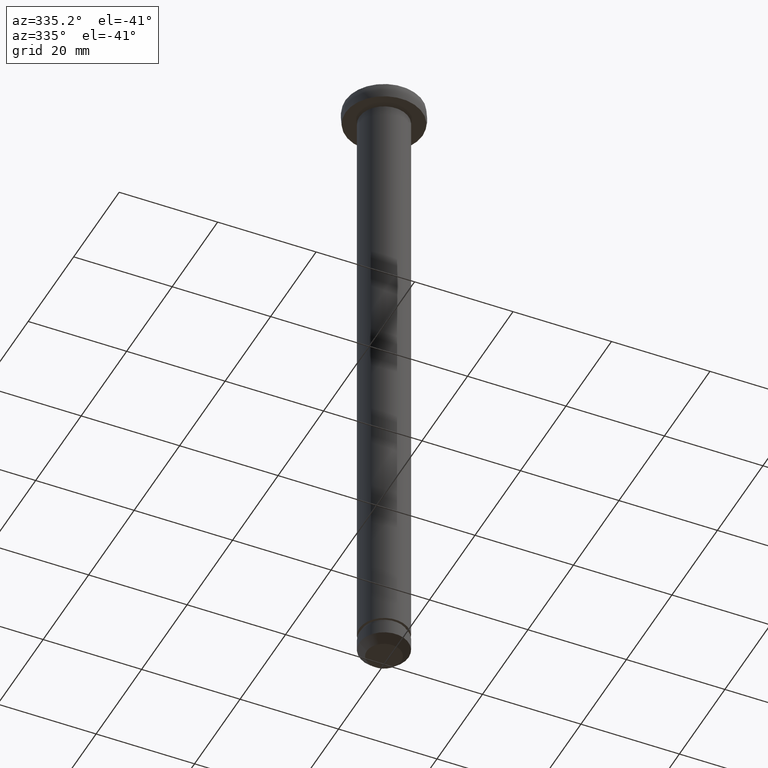
[diagram: clean part render]
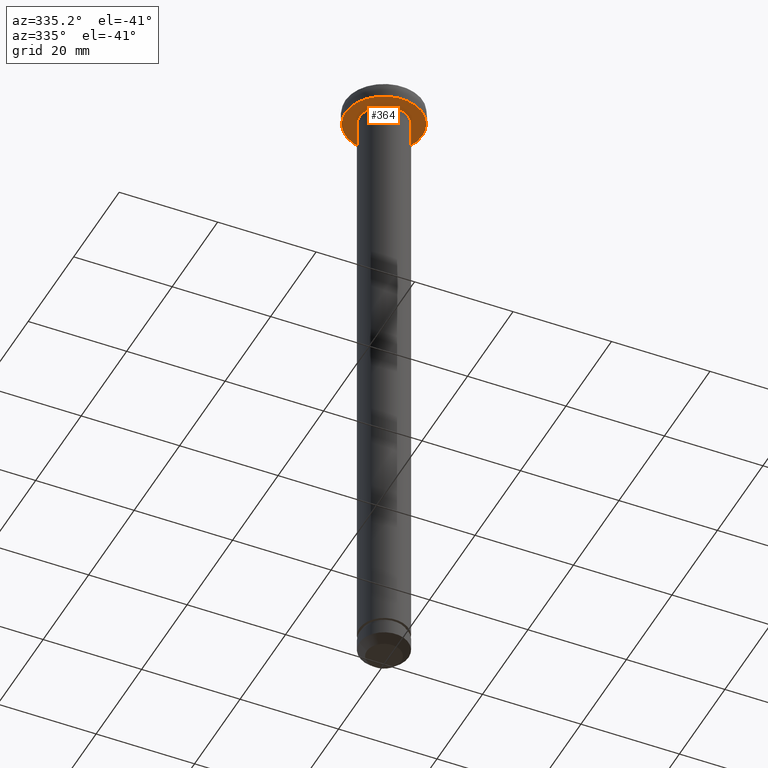
[diagram: same view with one face highlighted and labeled with its STEP entity id]
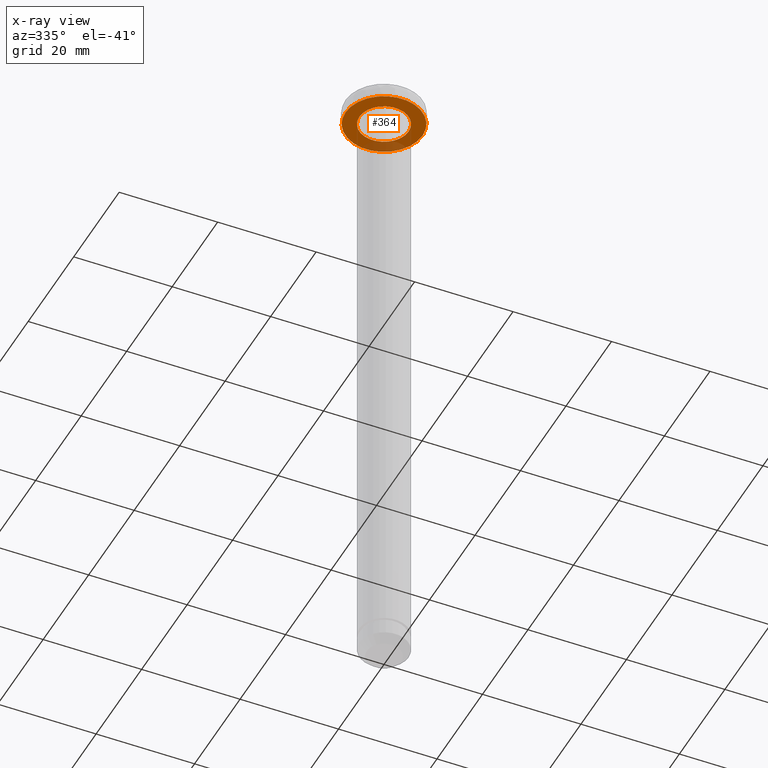
[diagram: x-ray of the same camera — body ghosted, the highlighted face saturated]
A machine part, auxiliary view. The second image highlights one B-rep face of the part: STEP entity #364.
The next image is the same camera in x-ray: the body ghosted, the highlighted face saturated — about 15% of this face is hidden behind the body in this view.
In plain terms, the highlighted planar face has unit normal (0, 0, -1).
Its self-contained STEP definition (entity closure, byte-faithful):
#8 = ORIENTED_EDGE ( 'NONE', *, *, #352, .T. ) ;
#10 = CARTESIAN_POINT ( 'NONE',  ( 0.0000000000000000000, 0.0000000000000000000, -3.000000018043495100 ) ) ;
#14 = VERTEX_POINT ( 'NONE', #204 ) ;
#83 = EDGE_CURVE ( 'NONE', #14, #90, #320, .T. ) ;
#90 = VERTEX_POINT ( 'NONE', #321 ) ;
#92 = CARTESIAN_POINT ( 'NONE',  ( -5.000000000000000000, 0.0000000000000000000, -3.000000018043495100 ) ) ;
#103 = FACE_OUTER_BOUND ( 'NONE', #403, .T. ) ;
#119 = CARTESIAN_POINT ( 'NONE',  ( 0.0000000000000000000, 0.0000000000000000000, -3.000000018043520000 ) ) ;
#121 = DIRECTION ( 'NONE',  ( 0.0000000000000000000, 0.0000000000000000000, -1.000000000000000000 ) ) ;
#127 = CARTESIAN_POINT ( 'NONE',  ( 5.000000000000000000, 0.0000000000000000000, -3.000000018043507600 ) ) ;
#145 = AXIS2_PLACEMENT_3D ( 'NONE', #10, #200, #309 ) ;
#149 = FACE_BOUND ( 'NONE', #436, .T. ) ;
#162 = AXIS2_PLACEMENT_3D ( 'NONE', #429, #190, #231 ) ;
#190 = DIRECTION ( 'NONE',  ( 0.0000000000000000000, 0.0000000000000000000, -1.000000000000000000 ) ) ;
#196 = AXIS2_PLACEMENT_3D ( 'NONE', #119, #227, #350 ) ;
#200 = DIRECTION ( 'NONE',  ( 0.0000000000000000000, 0.0000000000000000000, -1.000000000000000000 ) ) ;
#201 = VERTEX_POINT ( 'NONE', #92 ) ;
#204 = CARTESIAN_POINT ( 'NONE',  ( -7.828427118366898100, 0.0000000000000000000, -3.000000018043520000 ) ) ;
#227 = DIRECTION ( 'NONE',  ( 0.0000000000000000000, 0.0000000000000000000, -1.000000000000000000 ) ) ;
#231 = DIRECTION ( 'NONE',  ( -1.000000000000000000, 0.0000000000000000000, 0.0000000000000000000 ) ) ;
#236 = CARTESIAN_POINT ( 'NONE',  ( 5.000000000000000000, 6.123233995736766300E-016, -3.000000018043495100 ) ) ;
#289 = DIRECTION ( 'NONE',  ( 0.0000000000000000000, 0.0000000000000000000, -1.000000000000000000 ) ) ;
#301 = AXIS2_PLACEMENT_3D ( 'NONE', #127, #121, #338 ) ;
#303 = DIRECTION ( 'NONE',  ( -1.000000000000000000, 0.0000000000000000000, 0.0000000000000000000 ) ) ;
#309 = DIRECTION ( 'NONE',  ( -1.000000000000000000, 0.0000000000000000000, 0.0000000000000000000 ) ) ;
#320 = CIRCLE ( 'NONE', #162, 7.828427118366898100 ) ;
#321 = CARTESIAN_POINT ( 'NONE',  ( 7.828427118366898100, 9.587058212866361900E-016, -3.000000018043520000 ) ) ;
#326 = AXIS2_PLACEMENT_3D ( 'NONE', #434, #289, #303 ) ;
#331 = EDGE_CURVE ( 'NONE', #201, #353, #425, .T. ) ;
#338 = DIRECTION ( 'NONE',  ( -1.000000000000000000, 0.0000000000000000000, -0.0000000000000000000 ) ) ;
#350 = DIRECTION ( 'NONE',  ( -1.000000000000000000, 0.0000000000000000000, 0.0000000000000000000 ) ) ;
#352 = EDGE_CURVE ( 'NONE', #90, #14, #448, .T. ) ;
#353 = VERTEX_POINT ( 'NONE', #236 ) ;
#364 = ADVANCED_FACE ( 'NONE', ( #103, #149 ), #385, .T. ) ;
#374 = CIRCLE ( 'NONE', #326, 5.000000000000000000 ) ;
#385 = PLANE ( 'NONE',  #301 ) ;
#403 = EDGE_LOOP ( 'NONE', ( #453, #8 ) ) ;
#415 = EDGE_CURVE ( 'NONE', #353, #201, #374, .T. ) ;
#425 = CIRCLE ( 'NONE', #145, 5.000000000000000000 ) ;
#429 = CARTESIAN_POINT ( 'NONE',  ( 0.0000000000000000000, 0.0000000000000000000, -3.000000018043520000 ) ) ;
#434 = CARTESIAN_POINT ( 'NONE',  ( 0.0000000000000000000, 0.0000000000000000000, -3.000000018043495100 ) ) ;
#436 = EDGE_LOOP ( 'NONE', ( #462, #454 ) ) ;
#448 = CIRCLE ( 'NONE', #196, 7.828427118366898100 ) ;
#453 = ORIENTED_EDGE ( 'NONE', *, *, #83, .T. ) ;
#454 = ORIENTED_EDGE ( 'NONE', *, *, #415, .F. ) ;
#462 = ORIENTED_EDGE ( 'NONE', *, *, #331, .F. ) ;